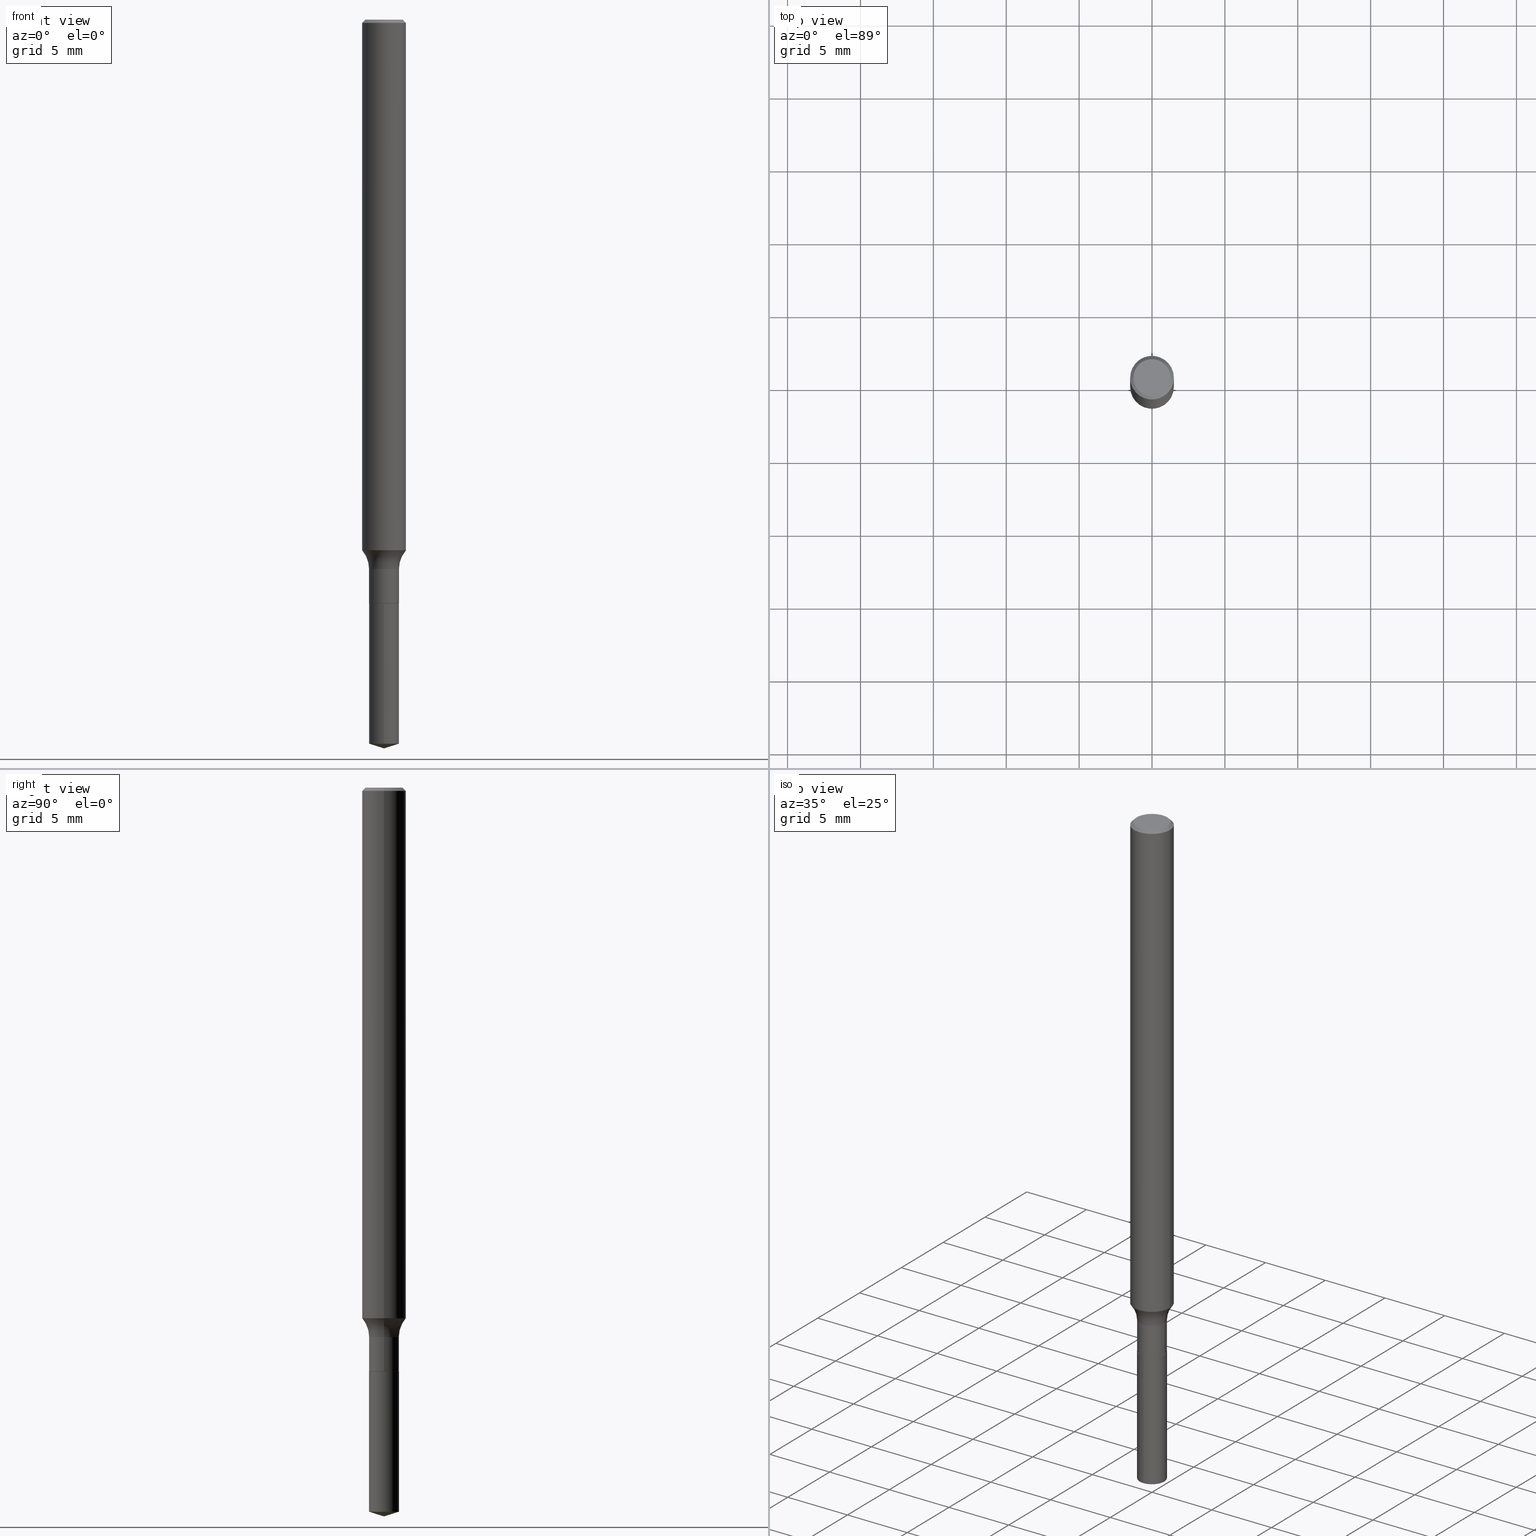
[diagram: canonical four-view strip — front | top / right | iso, engineering-drawing reading convention]
A machine part, canonical four-view strip (front | top / right | iso — engineering-drawing reading convention). The complete STEP part file that produces these views, byte-faithful:
ISO-10303-21;
HEADER;
FILE_DESCRIPTION (( 'STEP AP203' ),
    '1' );
FILE_NAME ('64507.STEP',
    '2024-04-19T15:41:07',
    ( '' ),
    ( '' ),
    'SwSTEP 2.0',
    'SolidWorks 2023',
    '' );
FILE_SCHEMA (( 'CONFIG_CONTROL_DESIGN' ));
ENDSEC;

DATA;
#1 = ORIENTED_EDGE ( 'NONE', *, *, #76, .T. ) ;
#2 = SHAPE_DEFINITION_REPRESENTATION ( #154, #179 ) ;
#3 = EDGE_CURVE ( 'NONE', #121, #447, #385, .T. ) ;
#4 = FACE_OUTER_BOUND ( 'NONE', #273, .T. ) ;
#5 = PRODUCT_DEFINITION_FORMATION_WITH_SPECIFIED_SOURCE ( 'ANY', '', #302, .NOT_KNOWN. ) ;
#6 = ORIENTED_EDGE ( 'NONE', *, *, #182, .F. ) ;
#7 = COORDINATED_UNIVERSAL_TIME_OFFSET ( 5, 0, .BEHIND. ) ;
#8 = FACE_OUTER_BOUND ( 'NONE', #319, .T. ) ;
#9 = VERTEX_POINT ( 'NONE', #17 ) ;
#10 = CALENDAR_DATE ( 2024, 19, 4 ) ;
#11 = CARTESIAN_POINT ( 'NONE',  ( 0.05905000000000009547, -4.123439461173747229E-16, 2.879382386107504424E-30 ) ) ;
#12 = VERTEX_POINT ( 'NONE', #326 ) ;
#13 = CC_DESIGN_PERSON_AND_ORGANIZATION_ASSIGNMENT ( #242, #279, ( #452 ) ) ;
#14 = ORIENTED_EDGE ( 'NONE', *, *, #276, .T. ) ;
#15 = PERSON_AND_ORGANIZATION_ROLE ( 'creator' ) ;
#16 = FACE_OUTER_BOUND ( 'NONE', #185, .T. ) ;
#17 = CARTESIAN_POINT ( 'NONE',  ( -0.05905000000000000526, -2.098108833677877703E-15, -0.008857500000000061505 ) ) ;
#18 = CC_DESIGN_APPROVAL ( #166, ( #213 ) ) ;
#19 = VERTEX_POINT ( 'NONE', #69 ) ;
#20 = DIRECTION ( 'NONE',  ( -2.445468806185136597E-29, 3.491481338843145583E-15, 1.000000000000000000 ) ) ;
#21 = ORIENTED_EDGE ( 'NONE', *, *, #308, .F. ) ;
#22 = DIRECTION ( 'NONE',  ( -2.445541806582640736E-29, 3.491376798118994826E-15, 1.000000000000000000 ) ) ;
#23 = EDGE_CURVE ( 'NONE', #19, #361, #413, .T. ) ;
#24 = PERSON_AND_ORGANIZATION_ROLE ( 'creator' ) ;
#25 = PLANE ( 'NONE',  #92 ) ;
#26 = AXIS2_PLACEMENT_3D ( 'NONE', #43, #80, #188 ) ;
#27 = AXIS2_PLACEMENT_3D ( 'NONE', #223, #112, #449 ) ;
#28 =( NAMED_UNIT ( * ) SI_UNIT ( $, .STERADIAN. ) SOLID_ANGLE_UNIT ( ) );
#29 = DIRECTION ( 'NONE',  ( 2.445541806582640736E-29, -3.491376798118994432E-15, -1.000000000000000000 ) ) ;
#30 = EDGE_CURVE ( 'NONE', #403, #307, #119, .T. ) ;
#31 = DIRECTION ( 'NONE',  ( -2.445541806582640736E-29, 3.491376798118994826E-15, 1.000000000000000000 ) ) ;
#32 = MECHANICAL_CONTEXT ( 'NONE', #207, 'mechanical' ) ;
#33 = DIRECTION ( 'NONE',  ( 6.776566513254256560E-15, 0.9537169507482285979, 0.3007057995042677900 ) ) ;
#34 = AXIS2_PLACEMENT_3D ( 'NONE', #284, #395, #463 ) ;
#35 = ADVANCED_FACE ( 'NONE', ( #373 ), #178, .F. ) ;
#36 = EDGE_LOOP ( 'NONE', ( #55, #269, #161, #6 ) ) ;
#37 = DIRECTION ( 'NONE',  ( 1.000000000000000000, -6.982962677686272233E-15, 0.000000000000000000 ) ) ;
#38 = VERTEX_POINT ( 'NONE', #262 ) ;
#39 = DIRECTION ( 'NONE',  ( -2.445468806185136597E-29, 3.491481338843145583E-15, 1.000000000000000000 ) ) ;
#40 = AXIS2_PLACEMENT_3D ( 'NONE', #140, #252, #255 ) ;
#41 = PLANE ( 'NONE',  #357 ) ;
#42 = AXIS2_PLACEMENT_3D ( 'NONE', #451, #304, #417 ) ;
#43 = CARTESIAN_POINT ( 'NONE',  ( 4.782821007710988017E-29, -6.828521702465810042E-15, -1.955777693868733236 ) ) ;
#44 = CARTESIAN_POINT ( 'NONE',  ( 2.166073995078499686E-31, -3.092579595880337662E-17, -0.008857500000000061505 ) ) ;
#45 = DIMENSIONAL_EXPONENTS ( 1.000000000000000000, 0.000000000000000000, 0.000000000000000000, 0.000000000000000000, 0.000000000000000000, 0.000000000000000000, 0.000000000000000000 ) ;
#46 = ORIENTED_EDGE ( 'NONE', *, *, #256, .F. ) ;
#47 = APPROVAL_ROLE ( '' ) ;
#48 = CARTESIAN_POINT ( 'NONE',  ( 2.867039938792482775E-16, 0.04034999999999448750, -1.576800000000000201 ) ) ;
#49 = VECTOR ( 'NONE', #277, 39.37007874015748143 ) ;
#50 = VECTOR ( 'NONE', #226, 39.37007874015748143 ) ;
#51 = ORIENTED_EDGE ( 'NONE', *, *, #3, .F. ) ;
#52 = CONICAL_SURFACE ( 'NONE', #70, 124.8659371009147918, 1.265363707695891016 ) ;
#53 = CARTESIAN_POINT ( 'NONE',  ( 0.000000000000000000, 0.000000000000000000, 0.000000000000000000 ) ) ;
#54 = ADVANCED_FACE ( 'NONE', ( #173 ), #405, .T. ) ;
#55 = ORIENTED_EDGE ( 'NONE', *, *, #453, .F. ) ;
#56 = ORIENTED_EDGE ( 'NONE', *, *, #299, .F. ) ;
#57 = COORDINATED_UNIVERSAL_TIME_OFFSET ( 5, 0, .BEHIND. ) ;
#58 = CARTESIAN_POINT ( 'NONE',  ( 0.000000000000000000, 0.000000000000000000, 0.000000000000000000 ) ) ;
#59 = ORIENTED_EDGE ( 'NONE', *, *, #230, .T. ) ;
#60 = APPROVAL_DATE_TIME ( #317, #261 ) ;
#61 = DIRECTION ( 'NONE',  ( 1.000000000000000000, -6.982962677686265133E-15, 4.876176775795935232E-29 ) ) ;
#62 = CC_DESIGN_APPROVAL ( #303, ( #5 ) ) ;
#63 = EDGE_LOOP ( 'NONE', ( #193, #1 ) ) ;
#64 = EDGE_CURVE ( 'NONE', #421, #429, #342, .T. ) ;
#65 = DIRECTION ( 'NONE',  ( 1.000000000000000000, -6.982962677686266711E-15, 4.876176775795935232E-29 ) ) ;
#66 = APPROVAL_ROLE ( '' ) ;
#67 = FACE_OUTER_BOUND ( 'NONE', #462, .T. ) ;
#68 = EDGE_CURVE ( 'NONE', #421, #415, #485, .T. ) ;
#69 = CARTESIAN_POINT ( 'NONE',  ( 0.04034999999999999004, -5.785384578463091597E-15, -1.576300000000000034 ) ) ;
#70 = AXIS2_PLACEMENT_3D ( 'NONE', #203, #362, #167 ) ;
#71 = CC_DESIGN_DATE_AND_TIME_ASSIGNMENT ( #235, #389, ( #452 ) ) ;
#72 = DIRECTION ( 'NONE',  ( 2.438088387897960049E-29, -3.491481338843145188E-15, -1.000000000000000000 ) ) ;
#73 = ADVANCED_FACE ( 'NONE', ( #170 ), #418, .T. ) ;
#74 = ORIENTED_EDGE ( 'NONE', *, *, #145, .F. ) ;
#75 = APPROVAL_STATUS ( 'not_yet_approved' ) ;
#76 = EDGE_CURVE ( 'NONE', #12, #313, #484, .T. ) ;
#77 = ORIENTED_EDGE ( 'NONE', *, *, #182, .T. ) ;
#78 = CARTESIAN_POINT ( 'NONE',  ( -0.04034999999999999004, 2.867039938792003542E-16, -1.984790308917854021E-30 ) ) ;
#79 = ORIENTED_EDGE ( 'NONE', *, *, #201, .F. ) ;
#80 = DIRECTION ( 'NONE',  ( -2.445541806582640736E-29, 3.491376798118994826E-15, 1.000000000000000000 ) ) ;
#81 = LINE ( 'NONE', #181, #50 ) ;
#82 = AXIS2_PLACEMENT_3D ( 'NONE', #102, #281, #434 ) ;
#83 = DIRECTION ( 'NONE',  ( 1.000000000000000000, -6.982962677686267499E-15, 0.000000000000000000 ) ) ;
#84 = EDGE_CURVE ( 'NONE', #393, #19, #218, .T. ) ;
#85 = ORIENTED_EDGE ( 'NONE', *, *, #64, .F. ) ;
#86 = DESIGN_CONTEXT ( 'detailed design', #120, 'design' ) ;
#87 = CARTESIAN_POINT ( 'NONE',  ( 2.166073995078499686E-31, -3.092579595880337662E-17, -0.008857500000000061505 ) ) ;
#88 = ADVANCED_FACE ( 'NONE', ( #104 ), #343, .F. ) ;
#89 = CARTESIAN_POINT ( 'NONE',  ( 3.505162329553956090E-29, -5.004442842329635631E-15, -1.433329397082726331 ) ) ;
#90 = EDGE_LOOP ( 'NONE', ( #310, #136, #202, #77 ) ) ;
#91 = LINE ( 'NONE', #11, #295 ) ;
#92 = AXIS2_PLACEMENT_3D ( 'NONE', #146, #72, #221 ) ;
#93 = ORIENTED_EDGE ( 'NONE', *, *, #411, .F. ) ;
#94 = SECURITY_CLASSIFICATION_LEVEL ( 'unclassified' ) ;
#95 = CARTESIAN_POINT ( 'NONE',  ( -0.05019250000000000100, 3.659552521791693345E-16, -3.591276738524661214E-19 ) ) ;
#96 = CARTESIAN_POINT ( 'NONE',  ( 3.505162329553956090E-29, -5.004442842329635631E-15, -1.433329397082726331 ) ) ;
#97 = ORIENTED_EDGE ( 'NONE', *, *, #134, .F. ) ;
#98 = APPROVAL_DATE_TIME ( #469, #303 ) ;
#99 = DIRECTION ( 'NONE',  ( 1.000000000000000000, -6.982962677686266711E-15, 4.876176775795935232E-29 ) ) ;
#100 = ADVANCED_FACE ( 'NONE', ( #67 ), #219, .T. ) ;
#101 = ORIENTED_EDGE ( 'NONE', *, *, #30, .T. ) ;
#102 = CARTESIAN_POINT ( 'NONE',  ( -0.1183499999999999691, -4.340430979071149444E-15, -1.483999999999999986 ) ) ;
#103 =( GEOMETRIC_REPRESENTATION_CONTEXT ( 3 ) GLOBAL_UNCERTAINTY_ASSIGNED_CONTEXT ( ( #271 ) ) GLOBAL_UNIT_ASSIGNED_CONTEXT ( ( #292, #175, #28 ) ) REPRESENTATION_CONTEXT ( 'NONE', 'WORKASPACE' ) );
#104 = FACE_OUTER_BOUND ( 'NONE', #233, .T. ) ;
#105 = ADVANCED_FACE ( 'NONE', ( #371 ), #25, .F. ) ;
#106 = DIRECTION ( 'NONE',  ( -6.982962677686266711E-15, -1.000000000000000000, 6.770379166454184154E-15 ) ) ;
#107 = EDGE_CURVE ( 'NONE', #313, #12, #441, .T. ) ;
#108 = DIRECTION ( 'NONE',  ( 1.000000000000000000, -6.982962677686266711E-15, 4.876140833081945105E-29 ) ) ;
#109 = CLOSED_SHELL ( 'NONE', ( #111, #280, #390, #465, #345, #368, #88, #461, #210, #105, #116, #73 ) ) ;
#110 = DIRECTION ( 'NONE',  ( -6.982962677686266711E-15, -1.000000000000000000, 6.770379166454184154E-15 ) ) ;
#111 = ADVANCED_FACE ( 'NONE', ( #383 ), #290, .T. ) ;
#112 = DIRECTION ( 'NONE',  ( 2.445468806185136597E-29, -3.491481338843145583E-15, -1.000000000000000000 ) ) ;
#113 = AXIS2_PLACEMENT_3D ( 'NONE', #157, #22, #215 ) ;
#114 = DIRECTION ( 'NONE',  ( 1.000000000000000000, -6.982962677686258822E-15, 0.000000000000000000 ) ) ;
#115 = DIRECTION ( 'NONE',  ( -0.7071067811866138531, 7.493145998870593974E-15, 0.7071067811864811814 ) ) ;
#116 = ADVANCED_FACE ( 'NONE', ( #152 ), #41, .F. ) ;
#117 = DIRECTION ( 'NONE',  ( -2.445541806582640736E-29, 3.491376798118994432E-15, 1.000000000000000000 ) ) ;
#118 = DIRECTION ( 'NONE',  ( -2.445468806185136597E-29, 3.491481338843145583E-15, 1.000000000000000000 ) ) ;
#119 = CIRCLE ( 'NONE', #177, 0.04034999999999999698 ) ;
#120 = APPLICATION_CONTEXT ( 'configuration controlled 3d designs of mechanical parts and assemblies' ) ;
#121 = VERTEX_POINT ( 'NONE', #352 ) ;
#122 = CARTESIAN_POINT ( 'NONE',  ( -2.817625440445929586E-16, -0.04035000000000681791, -1.955777693868732792 ) ) ;
#123 = EDGE_LOOP ( 'NONE', ( #300, #327, #131, #180 ) ) ;
#124 = DIRECTION ( 'NONE',  ( -2.445468806185136597E-29, 3.491481338843145583E-15, 1.000000000000000000 ) ) ;
#125 = ORIENTED_EDGE ( 'NONE', *, *, #134, .T. ) ;
#126 = CARTESIAN_POINT ( 'NONE',  ( 3.629075708378742535E-29, -5.181358306843227696E-15, -1.483999999999999986 ) ) ;
#127 = CIRCLE ( 'NONE', #142, 0.07800000000000001377 ) ;
#128 = CIRCLE ( 'NONE', #367, 0.04034999999999999698 ) ;
#129 = EDGE_LOOP ( 'NONE', ( #153, #93 ) ) ;
#130 = CARTESIAN_POINT ( 'NONE',  ( 3.856015213592723441E-29, -5.505367775087871380E-15, -1.576799999999999979 ) ) ;
#131 = ORIENTED_EDGE ( 'NONE', *, *, #138, .F. ) ;
#132 = APPROVAL_ROLE ( '' ) ;
#133 = CARTESIAN_POINT ( 'NONE',  ( -0.05905000000000009547, 4.195754854663398381E-16, -2.904631170795526446E-30 ) ) ;
#134 = EDGE_CURVE ( 'NONE', #248, #393, #454, .T. ) ;
#135 = DATE_AND_TIME ( #408, #332 ) ;
#136 = ORIENTED_EDGE ( 'NONE', *, *, #107, .F. ) ;
#137 = CIRCLE ( 'NONE', #26, 0.04034999999999999698 ) ;
#138 = EDGE_CURVE ( 'NONE', #329, #9, #197, .T. ) ;
#139 = AXIS2_PLACEMENT_3D ( 'NONE', #338, #31, #483 ) ;
#140 = CARTESIAN_POINT ( 'NONE',  ( 0.000000000000000000, 0.000000000000000000, 0.000000000000000000 ) ) ;
#141 = LENGTH_MEASURE_WITH_UNIT ( LENGTH_MEASURE( 0.02539999999999999897 ), #340 );
#142 = AXIS2_PLACEMENT_3D ( 'NONE', #380, #354, #249 ) ;
#143 = AXIS2_PLACEMENT_3D ( 'NONE', #444, #289, #108 ) ;
#144 = PERSON_AND_ORGANIZATION ( #337, #416 ) ;
#145 = EDGE_CURVE ( 'NONE', #19, #393, #478, .T. ) ;
#146 = CARTESIAN_POINT ( 'NONE',  ( 4.391177619189545165E-48, -6.269437857546430492E-34, -1.795638369249804840E-19 ) ) ;
#147 = ORIENTED_EDGE ( 'NONE', *, *, #84, .F. ) ;
#148 = CARTESIAN_POINT ( 'NONE',  ( 0.03984999999999999654, -5.783638837793669304E-15, -1.576799999999999979 ) ) ;
#149 = DIRECTION ( 'NONE',  ( -2.445468806185136597E-29, 3.491481338843145583E-15, 1.000000000000000000 ) ) ;
#150 = VECTOR ( 'NONE', #117, 39.37007874015748143 ) ;
#151 = CARTESIAN_POINT ( 'NONE',  ( 3.856015213592723441E-29, -5.505367775087871380E-15, -1.576799999999999979 ) ) ;
#152 = FACE_OUTER_BOUND ( 'NONE', #129, .T. ) ;
#153 = ORIENTED_EDGE ( 'NONE', *, *, #382, .F. ) ;
#154 = PRODUCT_DEFINITION_SHAPE ( 'NONE', 'NONE',  #213 ) ;
#155 = DIRECTION ( 'NONE',  ( -2.445468806185136877E-29, 3.491481338843145188E-15, 1.000000000000000000 ) ) ;
#156 = CC_DESIGN_APPROVAL ( #261, ( #452 ) ) ;
#157 = CARTESIAN_POINT ( 'NONE',  ( 3.856015213592723441E-29, -5.505367775087871380E-15, -1.576799999999999979 ) ) ;
#158 = AXIS2_PLACEMENT_3D ( 'NONE', #174, #341, #110 ) ;
#159 = COORDINATED_UNIVERSAL_TIME_OFFSET ( 5, 0, .BEHIND. ) ;
#160 = DIRECTION ( 'NONE',  ( 1.000000000000000000, -6.982962677686266711E-15, 4.883557194083112901E-29 ) ) ;
#161 = ORIENTED_EDGE ( 'NONE', *, *, #376, .T. ) ;
#162 = FACE_OUTER_BOUND ( 'NONE', #123, .T. ) ;
#163 = ORIENTED_EDGE ( 'NONE', *, *, #251, .F. ) ;
#164 = DIRECTION ( 'NONE',  ( -2.445468806185136597E-29, 3.491481338843145583E-15, 1.000000000000000000 ) ) ;
#165 = ORIENTED_EDGE ( 'NONE', *, *, #256, .T. ) ;
#166 = APPROVAL ( #75, 'UNSPECIFIED' ) ;
#167 = DIRECTION ( 'NONE',  ( -6.982962677686267499E-15, -1.000000000000000000, 3.500519750498711926E-15 ) ) ;
#168 = DIRECTION ( 'NONE',  ( -2.445541806582640736E-29, 3.491376798118994432E-15, 1.000000000000000000 ) ) ;
#169 = COORDINATED_UNIVERSAL_TIME_OFFSET ( 5, 0, .BEHIND. ) ;
#170 = FACE_OUTER_BOUND ( 'NONE', #379, .T. ) ;
#171 = AXIS2_PLACEMENT_3D ( 'NONE', #422, #39, #114 ) ;
#172 = CARTESIAN_POINT ( 'NONE',  ( -2.817625440446022277E-16, -0.04035000000000549952, -1.576799999999999757 ) ) ;
#173 = FACE_OUTER_BOUND ( 'NONE', #396, .T. ) ;
#174 = CARTESIAN_POINT ( 'NONE',  ( 3.856015213592723441E-29, -5.505367775087871380E-15, -1.576799999999999979 ) ) ;
#175 =( NAMED_UNIT ( * ) PLANE_ANGLE_UNIT ( ) SI_UNIT ( $, .RADIAN. ) );
#176 = DIRECTION ( 'NONE',  ( 6.982962677686265922E-15, 1.000000000000000000, -3.491376798118994432E-15 ) ) ;
#177 = AXIS2_PLACEMENT_3D ( 'NONE', #480, #378, #106 ) ;
#178 = PLANE ( 'NONE',  #282 ) ;
#179 = ADVANCED_BREP_SHAPE_REPRESENTATION ( '64507', ( #437, #268, #40 ), #103 ) ;
#180 = ORIENTED_EDGE ( 'NONE', *, *, #376, .F. ) ;
#181 = CARTESIAN_POINT ( 'NONE',  ( -0.05905000000000000526, 3.814181501585706869E-16, -0.008857500000000061505 ) ) ;
#182 = EDGE_CURVE ( 'NONE', #9, #329, #296, .T. ) ;
#183 = DIRECTION ( 'NONE',  ( 1.000000000000000000, -6.982962677686265922E-15, 4.876176775795935793E-29 ) ) ;
#184 = CIRCLE ( 'NONE', #467, 0.03984999999999999654 ) ;
#185 = EDGE_LOOP ( 'NONE', ( #359, #472, #487, #237 ) ) ;
#186 = CIRCLE ( 'NONE', #424, 0.04034999999999999698 ) ;
#187 = LINE ( 'NONE', #225, #374 ) ;
#188 = DIRECTION ( 'NONE',  ( -6.982962677686266711E-15, -1.000000000000000000, 6.770379166454184154E-15 ) ) ;
#189 = ORIENTED_EDGE ( 'NONE', *, *, #224, .T. ) ;
#190 = APPROVAL_STATUS ( 'not_yet_approved' ) ;
#191 = EDGE_CURVE ( 'NONE', #344, #19, #492, .T. ) ;
#192 = DIRECTION ( 'NONE',  ( 1.000000000000000000, -6.982962677686267499E-15, 0.000000000000000000 ) ) ;
#193 = ORIENTED_EDGE ( 'NONE', *, *, #107, .T. ) ;
#194 = CALENDAR_DATE ( 2024, 19, 4 ) ;
#195 = CARTESIAN_POINT ( 'NONE',  ( 0.05905000000000000526, -4.432697420761775264E-16, -0.008857500000000061505 ) ) ;
#196 = AXIS2_PLACEMENT_3D ( 'NONE', #375, #118, #312 ) ;
#197 = CIRCLE ( 'NONE', #479, 0.05905000000000000526 ) ;
#198 = ORIENTED_EDGE ( 'NONE', *, *, #291, .T. ) ;
#199 = DIRECTION ( 'NONE',  ( 1.000000000000000000, -6.982962677686267499E-15, 0.000000000000000000 ) ) ;
#200 = ORIENTED_EDGE ( 'NONE', *, *, #351, .T. ) ;
#201 = EDGE_CURVE ( 'NONE', #313, #9, #81, .T. ) ;
#202 = ORIENTED_EDGE ( 'NONE', *, *, #201, .T. ) ;
#203 = CARTESIAN_POINT ( 'NONE',  ( -9.146723954827438884E-28, 1.305828393865926437E-13, 37.40157874015748263 ) ) ;
#204 = DIRECTION ( 'NONE',  ( 1.000000000000000000, -6.982962677686267499E-15, 0.000000000000000000 ) ) ;
#205 = ORIENTED_EDGE ( 'NONE', *, *, #351, .F. ) ;
#206 = DIRECTION ( 'NONE',  ( -2.445468806185136597E-29, 3.491481338843145583E-15, 1.000000000000000000 ) ) ;
#207 = APPLICATION_CONTEXT ( 'configuration controlled 3d designs of mechanical parts and assemblies' ) ;
#208 = LOCAL_TIME ( 11, 41, 7.000000000000000000, #169 ) ;
#209 = ORIENTED_EDGE ( 'NONE', *, *, #370, .F. ) ;
#210 = ADVANCED_FACE ( 'NONE', ( #425 ), #349, .T. ) ;
#211 = DIRECTION ( 'NONE',  ( -2.445468806185136597E-29, 3.491481338843145583E-15, 1.000000000000000000 ) ) ;
#212 = APPLICATION_PROTOCOL_DEFINITION ( 'international standard', 'config_control_design', 1994, #207 ) ;
#213 = PRODUCT_DEFINITION ( 'UNKNOWN', '', #5, #86 ) ;
#214 = DIRECTION ( 'NONE',  ( -6.659769872151631300E-15, -0.9537169507482265995, 0.3007057995042744514 ) ) ;
#215 = DIRECTION ( 'NONE',  ( -6.982962677686266711E-15, -1.000000000000000000, 6.770379166454184154E-15 ) ) ;
#216 = CARTESIAN_POINT ( 'NONE',  ( 0.04034999999999999004, -2.817625440446407340E-16, 1.967537329033659479E-30 ) ) ;
#217 = LOCAL_TIME ( 11, 41, 7.000000000000000000, #57 ) ;
#218 = CIRCLE ( 'NONE', #459, 0.04034999999999999004 ) ;
#219 = CYLINDRICAL_SURFACE ( 'NONE', #158, 0.04034999999999999698 ) ;
#220 = LINE ( 'NONE', #172, #258 ) ;
#221 = DIRECTION ( 'NONE',  ( -1.000000000000000000, 6.982962677686265922E-15, -4.876176775795935793E-29 ) ) ;
#222 = CIRCLE ( 'NONE', #287, 0.03984999999999999654 ) ;
#223 = CARTESIAN_POINT ( 'NONE',  ( 2.166073995078499686E-31, -3.092579595880337662E-17, -0.008857500000000061505 ) ) ;
#224 = EDGE_CURVE ( 'NONE', #12, #329, #187, .T. ) ;
#225 = CARTESIAN_POINT ( 'NONE',  ( 0.05905000000000000526, -4.360382027272124113E-16, -0.008857500000000061505 ) ) ;
#226 = DIRECTION ( 'NONE',  ( -0.7071067811865454633, 2.468850131082235367E-15, -0.7071067811865495711 ) ) ;
#227 = AXIS2_PLACEMENT_3D ( 'NONE', #404, #391, #99 ) ;
#228 = ORIENTED_EDGE ( 'NONE', *, *, #291, .F. ) ;
#229 = CARTESIAN_POINT ( 'NONE',  ( 3.854792479189631200E-29, -5.503622034418449877E-15, -1.576300000000000034 ) ) ;
#230 = EDGE_CURVE ( 'NONE', #429, #403, #350, .T. ) ;
#231 = CALENDAR_DATE ( 2024, 19, 4 ) ;
#232 = DIRECTION ( 'NONE',  ( -2.445541806582640736E-29, 3.491376798118994826E-15, 1.000000000000000000 ) ) ;
#233 = EDGE_LOOP ( 'NONE', ( #392, #209, #241, #14 ) ) ;
#234 = CC_DESIGN_PERSON_AND_ORGANIZATION_ASSIGNMENT ( #320, #15, ( #5 ) ) ;
#235 = DATE_AND_TIME ( #10, #305 ) ;
#236 = CYLINDRICAL_SURFACE ( 'NONE', #227, 0.05905000000000009547 ) ;
#237 = ORIENTED_EDGE ( 'NONE', *, *, #23, .F. ) ;
#238 = APPROVAL_PERSON_ORGANIZATION ( #412, #166, #66 ) ;
#239 = DIRECTION ( 'NONE',  ( 1.000000000000000000, -6.982962677686258822E-15, 0.000000000000000000 ) ) ;
#240 = AXIS2_PLACEMENT_3D ( 'NONE', #446, #406, #298 ) ;
#241 = ORIENTED_EDGE ( 'NONE', *, *, #308, .T. ) ;
#242 = PERSON_AND_ORGANIZATION ( #337, #416 ) ;
#243 = CYLINDRICAL_SURFACE ( 'NONE', #113, 0.04034999999999999698 ) ;
#244 = ORIENTED_EDGE ( 'NONE', *, *, #476, .T. ) ;
#245 = ORIENTED_EDGE ( 'NONE', *, *, #138, .T. ) ;
#246 = PERSON_AND_ORGANIZATION_ROLE ( 'design_supplier' ) ;
#247 = FACE_OUTER_BOUND ( 'NONE', #468, .T. ) ;
#248 = VERTEX_POINT ( 'NONE', #266 ) ;
#249 = DIRECTION ( 'NONE',  ( 1.000000000000000000, -6.982962677686269866E-15, 0.000000000000000000 ) ) ;
#250 = VECTOR ( 'NONE', #33, 39.37007874015748143 ) ;
#251 = EDGE_CURVE ( 'NONE', #307, #403, #128, .T. ) ;
#252 = DIRECTION ( 'NONE',  ( 0.000000000000000000, 0.000000000000000000, 1.000000000000000000 ) ) ;
#253 = CARTESIAN_POINT ( 'NONE',  ( 3.854792479189631200E-29, -5.503622034418449877E-15, -1.576300000000000034 ) ) ;
#254 = DIRECTION ( 'NONE',  ( -2.445468806185136877E-29, 3.491481338843145188E-15, 1.000000000000000000 ) ) ;
#255 = DIRECTION ( 'NONE',  ( 1.000000000000000000, 0.000000000000000000, 0.000000000000000000 ) ) ;
#256 = EDGE_CURVE ( 'NONE', #429, #415, #186, .T. ) ;
#257 = DIRECTION ( 'NONE',  ( 1.000000000000000000, -6.982962677686258822E-15, 0.000000000000000000 ) ) ;
#258 = VECTOR ( 'NONE', #168, 39.37007874015748143 ) ;
#259 = CIRCLE ( 'NONE', #42, 0.04034999999999999004 ) ;
#260 = DIRECTION ( 'NONE',  ( 1.000000000000000000, -6.982962677686272233E-15, 0.000000000000000000 ) ) ;
#261 = APPROVAL ( #398, 'UNSPECIFIED' ) ;
#262 = CARTESIAN_POINT ( 'NONE',  ( -0.04034999999999999004, -5.055786176751638777E-15, -1.483999999999999986 ) ) ;
#263 = DIRECTION ( 'NONE',  ( 0.7071067811865454633, -7.319954787623248157E-15, -0.7071067811865495711 ) ) ;
#264 = AXIS2_PLACEMENT_3D ( 'NONE', #44, #301, #420 ) ;
#265 = AXIS2_PLACEMENT_3D ( 'NONE', #491, #309, #192 ) ;
#266 = CARTESIAN_POINT ( 'NONE',  ( -0.03984999999999999654, -5.219567267713360674E-15, -1.576799999999999979 ) ) ;
#267 = DIRECTION ( 'NONE',  ( -2.445541806582640736E-29, 3.491376798118994826E-15, 1.000000000000000000 ) ) ;
#268 = MANIFOLD_SOLID_BREP ( 'Body-Move/Copy2[2]', #109 ) ;
#269 = ORIENTED_EDGE ( 'NONE', *, *, #3, .T. ) ;
#270 = AXIS2_PLACEMENT_3D ( 'NONE', #334, #410, #257 ) ;
#271 = UNCERTAINTY_MEASURE_WITH_UNIT (LENGTH_MEASURE( 1.000000000000000082E-05 ), #292, 'distance_accuracy_value', 'NONE');
#272 = DIRECTION ( 'NONE',  ( 0.7071067811866138531, -2.468850131082952047E-15, 0.7071067811864811814 ) ) ;
#273 = EDGE_LOOP ( 'NONE', ( #198, #59, #163, #388 ) ) ;
#274 = CARTESIAN_POINT ( 'NONE',  ( 0.04034999999999999004, -5.463120850887868627E-15, -1.483999999999999986 ) ) ;
#275 = ORIENTED_EDGE ( 'NONE', *, *, #230, .F. ) ;
#276 = EDGE_CURVE ( 'NONE', #361, #38, #259, .T. ) ;
#277 = DIRECTION ( 'NONE',  ( -2.445468806185136877E-29, 3.491481338843145188E-15, 1.000000000000000000 ) ) ;
#278 = EDGE_LOOP ( 'NONE', ( #432, #101 ) ) ;
#279 = PERSON_AND_ORGANIZATION_ROLE ( 'classification_officer' ) ;
#280 = ADVANCED_FACE ( 'NONE', ( #387 ), #450, .T. ) ;
#281 = DIRECTION ( 'NONE',  ( 7.105427357601001859E-15, 1.000000000000000000, -3.491481338843145583E-15 ) ) ;
#282 = AXIS2_PLACEMENT_3D ( 'NONE', #443, #29, #176 ) ;
#283 = EDGE_LOOP ( 'NONE', ( #285, #125, #74, #475 ) ) ;
#284 = CARTESIAN_POINT ( 'NONE',  ( 3.629075708378742535E-29, -5.181358306843227696E-15, -1.483999999999999986 ) ) ;
#285 = ORIENTED_EDGE ( 'NONE', *, *, #382, .T. ) ;
#286 = CYLINDRICAL_SURFACE ( 'NONE', #431, 0.04034999999999999004 ) ;
#287 = AXIS2_PLACEMENT_3D ( 'NONE', #430, #124, #328 ) ;
#288 = APPROVAL_DATE_TIME ( #135, #166 ) ;
#289 = DIRECTION ( 'NONE',  ( -2.445468806185136597E-29, 3.491481338843145583E-15, 1.000000000000000000 ) ) ;
#290 = CONICAL_SURFACE ( 'NONE', #171, 0.03984999999999999654, 0.7853981633975420928 ) ;
#291 = EDGE_CURVE ( 'NONE', #415, #429, #137, .T. ) ;
#292 =( CONVERSION_BASED_UNIT ( 'INCH', #141 ) LENGTH_UNIT ( ) NAMED_UNIT ( #45 ) );
#293 = CARTESIAN_POINT ( 'NONE',  ( 4.813818832204358982E-29, -6.873104906724922767E-15, -1.968500000000000139 ) ) ;
#294 = CARTESIAN_POINT ( 'NONE',  ( 4.814051064963431927E-29, -6.872775227097241640E-15, -1.968500000000000139 ) ) ;
#295 = VECTOR ( 'NONE', #471, 39.37007874015748143 ) ;
#296 = CIRCLE ( 'NONE', #265, 0.05905000000000000526 ) ;
#297 = APPLICATION_PROTOCOL_DEFINITION ( 'international standard', 'config_control_design', 1994, #120 ) ;
#298 = DIRECTION ( 'NONE',  ( 1.000000000000000000, -6.982962677686266711E-15, 4.883557194083112901E-29 ) ) ;
#299 = EDGE_CURVE ( 'NONE', #393, #38, #381, .T. ) ;
#300 = ORIENTED_EDGE ( 'NONE', *, *, #370, .T. ) ;
#301 = DIRECTION ( 'NONE',  ( 2.445468806185136597E-29, -3.491481338843145583E-15, -1.000000000000000000 ) ) ;
#302 = PRODUCT ( '64507', '64507', '', ( #32 ) ) ;
#303 = APPROVAL ( #190, 'UNSPECIFIED' ) ;
#304 = DIRECTION ( 'NONE',  ( -2.445468806185136597E-29, 3.491481338843145583E-15, 1.000000000000000000 ) ) ;
#305 = LOCAL_TIME ( 11, 41, 7.000000000000000000, #7 ) ;
#306 = DIRECTION ( 'NONE',  ( -6.982962677686266711E-15, -1.000000000000000000, 6.770379166454184154E-15 ) ) ;
#307 = VERTEX_POINT ( 'NONE', #457 ) ;
#308 = EDGE_CURVE ( 'NONE', #447, #361, #127, .T. ) ;
#309 = DIRECTION ( 'NONE',  ( -2.445468806185136597E-29, 3.491481338843145583E-15, 1.000000000000000000 ) ) ;
#310 = ORIENTED_EDGE ( 'NONE', *, *, #224, .F. ) ;
#311 = CC_DESIGN_PERSON_AND_ORGANIZATION_ASSIGNMENT ( #394, #246, ( #5 ) ) ;
#312 = DIRECTION ( 'NONE',  ( 1.000000000000000000, -6.982962677686266711E-15, 4.876140833081945105E-29 ) ) ;
#313 = VERTEX_POINT ( 'NONE', #95 ) ;
#314 = VECTOR ( 'NONE', #214, 39.37007874015748143 ) ;
#315 = CARTESIAN_POINT ( 'NONE',  ( 0.03984999999999999654, -5.783638837793669304E-15, -1.576799999999999979 ) ) ;
#316 = ORIENTED_EDGE ( 'NONE', *, *, #64, .T. ) ;
#317 = DATE_AND_TIME ( #194, #377 ) ;
#318 = CARTESIAN_POINT ( 'NONE',  ( -0.04034999999999999004, -5.055786176751638777E-15, -1.576300000000000034 ) ) ;
#319 = EDGE_LOOP ( 'NONE', ( #51, #244, #200, #21 ) ) ;
#320 = PERSON_AND_ORGANIZATION ( #337, #416 ) ;
#321 = DIRECTION ( 'NONE',  ( -2.445468806185136597E-29, 3.491481338843145583E-15, 1.000000000000000000 ) ) ;
#322 = ORIENTED_EDGE ( 'NONE', *, *, #30, .F. ) ;
#323 = PERSON_AND_ORGANIZATION ( #337, #416 ) ;
#324 = DIRECTION ( 'NONE',  ( 1.000000000000000000, -6.982962677686265133E-15, 4.876176775795935232E-29 ) ) ;
#325 = CLOSED_SHELL ( 'NONE', ( #481, #54, #448, #100, #35 ) ) ;
#326 = CARTESIAN_POINT ( 'NONE',  ( 0.05019250000000000100, -3.901918742401799672E-16, -3.591276738473711219E-19 ) ) ;
#327 = ORIENTED_EDGE ( 'NONE', *, *, #453, .T. ) ;
#328 = DIRECTION ( 'NONE',  ( 1.000000000000000000, -6.982962677686258822E-15, 0.000000000000000000 ) ) ;
#329 = VERTEX_POINT ( 'NONE', #195 ) ;
#330 = PERSON_AND_ORGANIZATION_ROLE ( 'design_owner' ) ;
#331 = PRODUCT_RELATED_PRODUCT_CATEGORY ( 'detail', '', ( #302 ) ) ;
#332 = LOCAL_TIME ( 11, 41, 7.000000000000000000, #474 ) ;
#333 = CALENDAR_DATE ( 2024, 19, 4 ) ;
#334 = CARTESIAN_POINT ( 'NONE',  ( 3.856015213592723441E-29, -5.505367775087871380E-15, -1.576799999999999979 ) ) ;
#335 = AXIS2_PLACEMENT_3D ( 'NONE', #229, #489, #37 ) ;
#336 = CIRCLE ( 'NONE', #407, 0.05905000000000017873 ) ;
#337 = PERSON ( 'UNSPECIFIED', 'UNSPECIFIED', 'UNSPECIFIED', ('UNSPECIFIED'), ('UNSPECIFIED'), ('UNSPECIFIED') ) ;
#338 = CARTESIAN_POINT ( 'NONE',  ( -9.146723954827438884E-28, 1.305828393865926437E-13, 37.40157874015748263 ) ) ;
#339 = CC_DESIGN_DATE_AND_TIME_ASSIGNMENT ( #435, #364, ( #213 ) ) ;
#340 =( LENGTH_UNIT ( ) NAMED_UNIT ( * ) SI_UNIT ( $, .METRE. ) );
#341 = DIRECTION ( 'NONE',  ( -2.445541806582640736E-29, 3.491376798118994826E-15, 1.000000000000000000 ) ) ;
#342 = LINE ( 'NONE', #294, #250 ) ;
#343 = TOROIDAL_SURFACE ( 'NONE', #240, 0.1183499999999999691, 0.07800000000000001377 ) ;
#344 = VERTEX_POINT ( 'NONE', #315 ) ;
#345 = ADVANCED_FACE ( 'NONE', ( #16 ), #286, .T. ) ;
#346 = CARTESIAN_POINT ( 'NONE',  ( 2.867039938792389098E-16, 0.04034999999999448750, -1.576800000000000201 ) ) ;
#347 = CARTESIAN_POINT ( 'NONE',  ( 4.782821007710988017E-29, -6.828521702465810042E-15, -1.955777693868733236 ) ) ;
#348 = CIRCLE ( 'NONE', #34, 0.04034999999999999004 ) ;
#349 = CONICAL_SURFACE ( 'NONE', #27, 0.05905000000000000526, 0.7853981633974453924 ) ;
#350 = LINE ( 'NONE', #346, #150 ) ;
#351 = EDGE_CURVE ( 'NONE', #38, #361, #348, .T. ) ;
#352 = CARTESIAN_POINT ( 'NONE',  ( -0.05905000000000020649, -4.584867356863295349E-15, -1.433329397082726331 ) ) ;
#353 = EDGE_LOOP ( 'NONE', ( #56, #456, #356, #205 ) ) ;
#354 = DIRECTION ( 'NONE',  ( -6.982962677686266711E-15, -1.000000000000000000, 3.491481338843145583E-15 ) ) ;
#355 = APPROVAL_PERSON_ORGANIZATION ( #400, #261, #47 ) ;
#356 = ORIENTED_EDGE ( 'NONE', *, *, #23, .T. ) ;
#357 = AXIS2_PLACEMENT_3D ( 'NONE', #455, #419, #183 ) ;
#358 = CARTESIAN_POINT ( 'NONE',  ( 0.000000000000000000, 0.000000000000000000, 0.000000000000000000 ) ) ;
#359 = ORIENTED_EDGE ( 'NONE', *, *, #145, .T. ) ;
#360 = CARTESIAN_POINT ( 'NONE',  ( 4.814049046257928514E-29, -6.872775227097241640E-15, -1.968500000000000139 ) ) ;
#361 = VERTEX_POINT ( 'NONE', #274 ) ;
#362 = DIRECTION ( 'NONE',  ( -2.445541806582640736E-29, 3.491376798118994826E-15, 1.000000000000000000 ) ) ;
#363 = ORIENTED_EDGE ( 'NONE', *, *, #411, .T. ) ;
#364 = DATE_TIME_ROLE ( 'creation_date' ) ;
#365 = AXIS2_PLACEMENT_3D ( 'NONE', #58, #366, #61 ) ;
#366 = DIRECTION ( 'NONE',  ( -2.445468806185136597E-29, 3.491481338843145583E-15, 1.000000000000000000 ) ) ;
#367 = AXIS2_PLACEMENT_3D ( 'NONE', #151, #267, #386 ) ;
#368 = ADVANCED_FACE ( 'NONE', ( #473 ), #436, .T. ) ;
#369 = PERSON_AND_ORGANIZATION ( #337, #416 ) ;
#370 = EDGE_CURVE ( 'NONE', #447, #121, #336, .T. ) ;
#371 = FACE_OUTER_BOUND ( 'NONE', #63, .T. ) ;
#372 = CIRCLE ( 'NONE', #82, 0.07800000000000001377 ) ;
#373 = FACE_OUTER_BOUND ( 'NONE', #278, .T. ) ;
#374 = VECTOR ( 'NONE', #263, 39.37007874015748143 ) ;
#375 = CARTESIAN_POINT ( 'NONE',  ( 8.782355238379090331E-48, -1.253887571509286098E-33, -3.591276738499609681E-19 ) ) ;
#376 = EDGE_CURVE ( 'NONE', #447, #329, #91, .T. ) ;
#377 = LOCAL_TIME ( 11, 41, 7.000000000000000000, #159 ) ;
#378 = DIRECTION ( 'NONE',  ( -2.445541806582640736E-29, 3.491376798118994826E-15, 1.000000000000000000 ) ) ;
#379 = EDGE_LOOP ( 'NONE', ( #97, #363, #428, #147 ) ) ;
#380 = CARTESIAN_POINT ( 'NONE',  ( 0.1183499999999999691, -6.007791939747397462E-15, -1.483999999999999986 ) ) ;
#381 = LINE ( 'NONE', #78, #445 ) ;
#382 = EDGE_CURVE ( 'NONE', #344, #248, #184, .T. ) ;
#383 = FACE_OUTER_BOUND ( 'NONE', #283, .T. ) ;
#384 = TOROIDAL_SURFACE ( 'NONE', #477, 0.1183499999999999691, 0.07800000000000001377 ) ;
#385 = CIRCLE ( 'NONE', #409, 0.05905000000000017873 ) ;
#386 = DIRECTION ( 'NONE',  ( -6.982962677686266711E-15, -1.000000000000000000, 6.770379166454184154E-15 ) ) ;
#387 = FACE_OUTER_BOUND ( 'NONE', #438, .T. ) ;
#388 = ORIENTED_EDGE ( 'NONE', *, *, #486, .F. ) ;
#389 = DATE_TIME_ROLE ( 'classification_date' ) ;
#390 = ADVANCED_FACE ( 'NONE', ( #162 ), #236, .T. ) ;
#391 = DIRECTION ( 'NONE',  ( -2.445468806185136597E-29, 3.491481338843145583E-15, 1.000000000000000000 ) ) ;
#392 = ORIENTED_EDGE ( 'NONE', *, *, #476, .F. ) ;
#393 = VERTEX_POINT ( 'NONE', #318 ) ;
#394 = PERSON_AND_ORGANIZATION ( #337, #416 ) ;
#395 = DIRECTION ( 'NONE',  ( -2.445468806185136597E-29, 3.491481338843145583E-15, 1.000000000000000000 ) ) ;
#396 = EDGE_LOOP ( 'NONE', ( #426, #316, #228 ) ) ;
#397 = ORIENTED_EDGE ( 'NONE', *, *, #68, .T. ) ;
#398 = APPROVAL_STATUS ( 'not_yet_approved' ) ;
#399 = DIRECTION ( 'NONE',  ( -2.445468806185136597E-29, 3.491481338843145583E-15, 1.000000000000000000 ) ) ;
#400 = PERSON_AND_ORGANIZATION ( #337, #416 ) ;
#401 = LINE ( 'NONE', #133, #49 ) ;
#402 = CC_DESIGN_PERSON_AND_ORGANIZATION_ASSIGNMENT ( #144, #330, ( #302 ) ) ;
#403 = VERTEX_POINT ( 'NONE', #48 ) ;
#404 = CARTESIAN_POINT ( 'NONE',  ( 0.000000000000000000, 0.000000000000000000, 0.000000000000000000 ) ) ;
#405 = CONICAL_SURFACE ( 'NONE', #139, 124.8659371009147918, 1.265363707695891016 ) ;
#406 = DIRECTION ( 'NONE',  ( -2.445468806185136597E-29, 3.491481338843145583E-15, 1.000000000000000000 ) ) ;
#407 = AXIS2_PLACEMENT_3D ( 'NONE', #89, #206, #199 ) ;
#408 = CALENDAR_DATE ( 2024, 19, 4 ) ;
#409 = AXIS2_PLACEMENT_3D ( 'NONE', #96, #399, #204 ) ;
#410 = DIRECTION ( 'NONE',  ( -2.445468806185136597E-29, 3.491481338843145583E-15, 1.000000000000000000 ) ) ;
#411 = EDGE_CURVE ( 'NONE', #248, #344, #222, .T. ) ;
#412 = PERSON_AND_ORGANIZATION ( #337, #416 ) ;
#413 = LINE ( 'NONE', #216, #433 ) ;
#414 = CC_DESIGN_PERSON_AND_ORGANIZATION_ASSIGNMENT ( #369, #24, ( #213 ) ) ;
#415 = VERTEX_POINT ( 'NONE', #122 ) ;
#416 = ORGANIZATION ( 'UNSPECIFIED', 'UNSPECIFIED', '' ) ;
#417 = DIRECTION ( 'NONE',  ( 1.000000000000000000, -6.982962677686272233E-15, 0.000000000000000000 ) ) ;
#418 = CONICAL_SURFACE ( 'NONE', #270, 0.03984999999999999654, 0.7853981633975420928 ) ;
#419 = DIRECTION ( 'NONE',  ( -2.438088387897960049E-29, 3.491481338843145188E-15, 1.000000000000000000 ) ) ;
#420 = DIRECTION ( 'NONE',  ( -1.000000000000000000, 6.982962677686267499E-15, 0.000000000000000000 ) ) ;
#421 = VERTEX_POINT ( 'NONE', #360 ) ;
#422 = CARTESIAN_POINT ( 'NONE',  ( 3.856015213592723441E-29, -5.505367775087871380E-15, -1.576799999999999979 ) ) ;
#423 = AXIS2_PLACEMENT_3D ( 'NONE', #358, #164, #65 ) ;
#424 = AXIS2_PLACEMENT_3D ( 'NONE', #347, #232, #306 ) ;
#425 = FACE_OUTER_BOUND ( 'NONE', #90, .T. ) ;
#426 = ORIENTED_EDGE ( 'NONE', *, *, #68, .F. ) ;
#427 = CARTESIAN_POINT ( 'NONE',  ( 2.867039938792481296E-16, 0.04034999999999315523, -1.955777693868733458 ) ) ;
#428 = ORIENTED_EDGE ( 'NONE', *, *, #191, .T. ) ;
#429 = VERTEX_POINT ( 'NONE', #427 ) ;
#430 = CARTESIAN_POINT ( 'NONE',  ( 3.856015213592723441E-29, -5.505367775087871380E-15, -1.576799999999999979 ) ) ;
#431 = AXIS2_PLACEMENT_3D ( 'NONE', #53, #321, #324 ) ;
#432 = ORIENTED_EDGE ( 'NONE', *, *, #251, .T. ) ;
#433 = VECTOR ( 'NONE', #254, 39.37007874015748143 ) ;
#434 = DIRECTION ( 'NONE',  ( -1.000000000000000000, 7.105427357601003436E-15, 0.000000000000000000 ) ) ;
#435 = DATE_AND_TIME ( #333, #208 ) ;
#436 = CYLINDRICAL_SURFACE ( 'NONE', #365, 0.04034999999999999004 ) ;
#437 = MANIFOLD_SOLID_BREP ( 'Body-Move/Copy2[1]', #325 ) ;
#438 = EDGE_LOOP ( 'NONE', ( #464, #189, #245, #79 ) ) ;
#439 = CYLINDRICAL_SURFACE ( 'NONE', #423, 0.05905000000000009547 ) ;
#440 = CC_DESIGN_SECURITY_CLASSIFICATION ( #452, ( #5 ) ) ;
#441 = CIRCLE ( 'NONE', #196, 0.05019250000000000100 ) ;
#442 = DIRECTION ( 'NONE',  ( -2.445468806185136597E-29, 3.491481338843145583E-15, 1.000000000000000000 ) ) ;
#443 = CARTESIAN_POINT ( 'NONE',  ( 3.856015213592723441E-29, -5.505367775087871380E-15, -1.576799999999999979 ) ) ;
#444 = CARTESIAN_POINT ( 'NONE',  ( 8.782355238379090331E-48, -1.253887571509286098E-33, -3.591276738499609681E-19 ) ) ;
#445 = VECTOR ( 'NONE', #155, 39.37007874015748143 ) ;
#446 = CARTESIAN_POINT ( 'NONE',  ( 3.629075708378742535E-29, -5.181358306843227696E-15, -1.483999999999999986 ) ) ;
#447 = VERTEX_POINT ( 'NONE', #466 ) ;
#448 = ADVANCED_FACE ( 'NONE', ( #247 ), #52, .T. ) ;
#449 = DIRECTION ( 'NONE',  ( -1.000000000000000000, 6.982962677686267499E-15, 0.000000000000000000 ) ) ;
#450 = CONICAL_SURFACE ( 'NONE', #264, 0.05905000000000000526, 0.7853981633974453924 ) ;
#451 = CARTESIAN_POINT ( 'NONE',  ( 3.629075708378742535E-29, -5.181358306843227696E-15, -1.483999999999999986 ) ) ;
#452 = SECURITY_CLASSIFICATION ( '', '', #94 ) ;
#453 = EDGE_CURVE ( 'NONE', #121, #9, #401, .T. ) ;
#454 = LINE ( 'NONE', #488, #490 ) ;
#455 = CARTESIAN_POINT ( 'NONE',  ( 3.856015213592723441E-29, -5.505367775087871380E-15, -1.576799999999999979 ) ) ;
#456 = ORIENTED_EDGE ( 'NONE', *, *, #84, .T. ) ;
#457 = CARTESIAN_POINT ( 'NONE',  ( -2.817625440446022277E-16, -0.04035000000000549952, -1.576799999999999757 ) ) ;
#458 = ORIENTED_EDGE ( 'NONE', *, *, #486, .T. ) ;
#459 = AXIS2_PLACEMENT_3D ( 'NONE', #253, #442, #260 ) ;
#460 = FACE_OUTER_BOUND ( 'NONE', #36, .T. ) ;
#461 = ADVANCED_FACE ( 'NONE', ( #460 ), #439, .T. ) ;
#462 = EDGE_LOOP ( 'NONE', ( #275, #165, #458, #322 ) ) ;
#463 = DIRECTION ( 'NONE',  ( 1.000000000000000000, -6.982962677686272233E-15, 0.000000000000000000 ) ) ;
#464 = ORIENTED_EDGE ( 'NONE', *, *, #76, .F. ) ;
#465 = ADVANCED_FACE ( 'NONE', ( #8 ), #384, .F. ) ;
#466 = CARTESIAN_POINT ( 'NONE',  ( 0.05905000000000020649, -5.416786788447011340E-15, -1.433329397082726331 ) ) ;
#467 = AXIS2_PLACEMENT_3D ( 'NONE', #130, #20, #239 ) ;
#468 = EDGE_LOOP ( 'NONE', ( #85, #397, #46 ) ) ;
#469 = DATE_AND_TIME ( #231, #217 ) ;
#470 = VECTOR ( 'NONE', #272, 39.37007874015748143 ) ;
#471 = DIRECTION ( 'NONE',  ( -2.445468806185136877E-29, 3.491481338843145188E-15, 1.000000000000000000 ) ) ;
#472 = ORIENTED_EDGE ( 'NONE', *, *, #299, .T. ) ;
#473 = FACE_OUTER_BOUND ( 'NONE', #353, .T. ) ;
#474 = COORDINATED_UNIVERSAL_TIME_OFFSET ( 5, 0, .BEHIND. ) ;
#475 = ORIENTED_EDGE ( 'NONE', *, *, #191, .F. ) ;
#476 = EDGE_CURVE ( 'NONE', #121, #38, #372, .T. ) ;
#477 = AXIS2_PLACEMENT_3D ( 'NONE', #126, #211, #160 ) ;
#478 = CIRCLE ( 'NONE', #335, 0.04034999999999999004 ) ;
#479 = AXIS2_PLACEMENT_3D ( 'NONE', #87, #149, #83 ) ;
#480 = CARTESIAN_POINT ( 'NONE',  ( 3.856015213592723441E-29, -5.505367775087871380E-15, -1.576799999999999979 ) ) ;
#481 = ADVANCED_FACE ( 'NONE', ( #4 ), #243, .T. ) ;
#482 = APPROVAL_PERSON_ORGANIZATION ( #323, #303, #132 ) ;
#483 = DIRECTION ( 'NONE',  ( -6.982962677686267499E-15, -1.000000000000000000, 3.500519750498711926E-15 ) ) ;
#484 = CIRCLE ( 'NONE', #143, 0.05019250000000000100 ) ;
#485 = LINE ( 'NONE', #293, #314 ) ;
#486 = EDGE_CURVE ( 'NONE', #415, #307, #220, .T. ) ;
#487 = ORIENTED_EDGE ( 'NONE', *, *, #276, .F. ) ;
#488 = CARTESIAN_POINT ( 'NONE',  ( -0.03984999999999999654, -5.222216494887471875E-15, -1.576799999999999979 ) ) ;
#489 = DIRECTION ( 'NONE',  ( -2.445468806185136597E-29, 3.491481338843145583E-15, 1.000000000000000000 ) ) ;
#490 = VECTOR ( 'NONE', #115, 39.37007874015748143 ) ;
#491 = CARTESIAN_POINT ( 'NONE',  ( 2.166073995078499686E-31, -3.092579595880337662E-17, -0.008857500000000061505 ) ) ;
#492 = LINE ( 'NONE', #148, #470 ) ;
ENDSEC;
END-ISO-10303-21;
